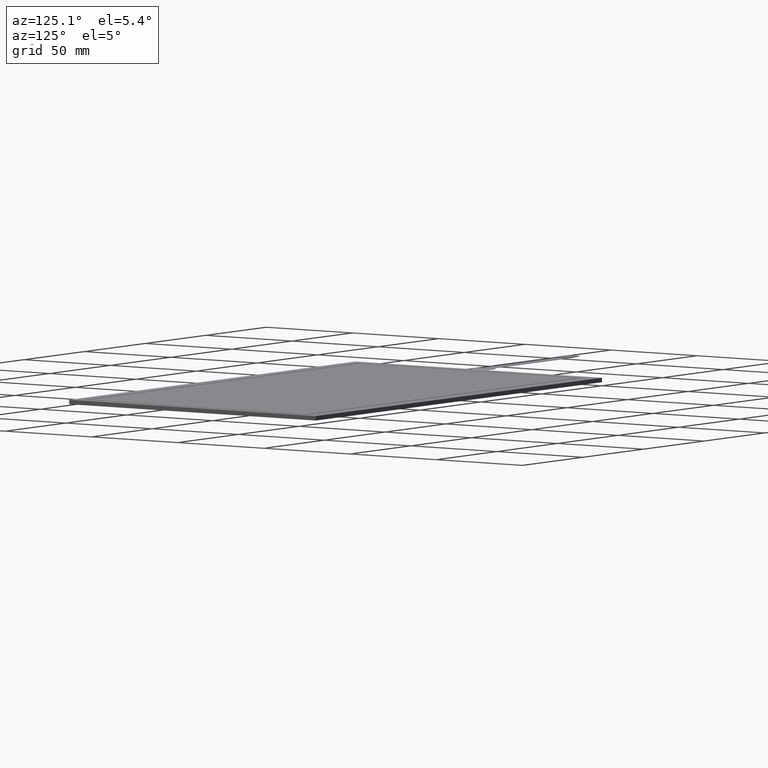
[diagram: clean part render]
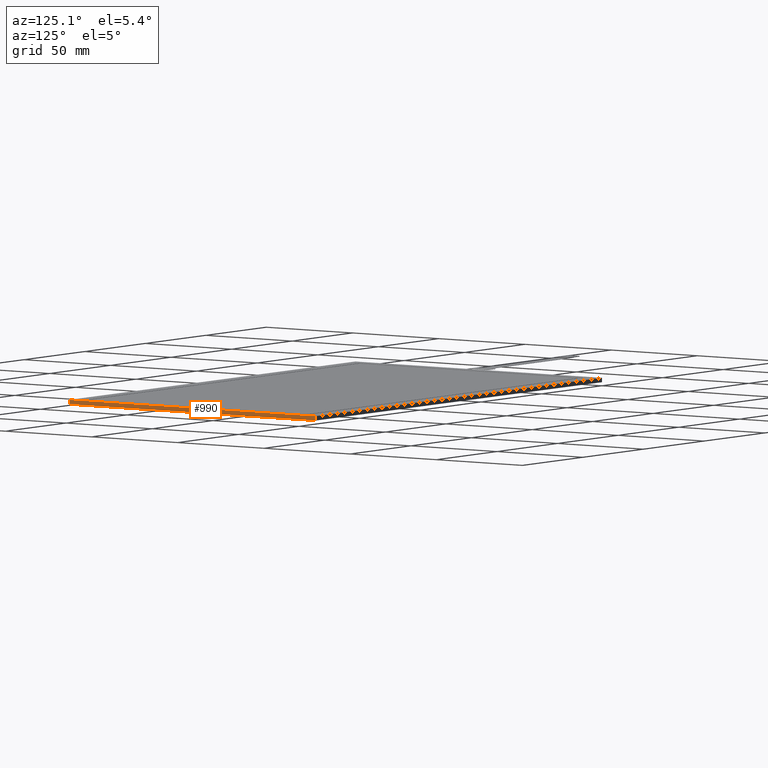
[diagram: same view with one face highlighted and labeled with its STEP entity id]
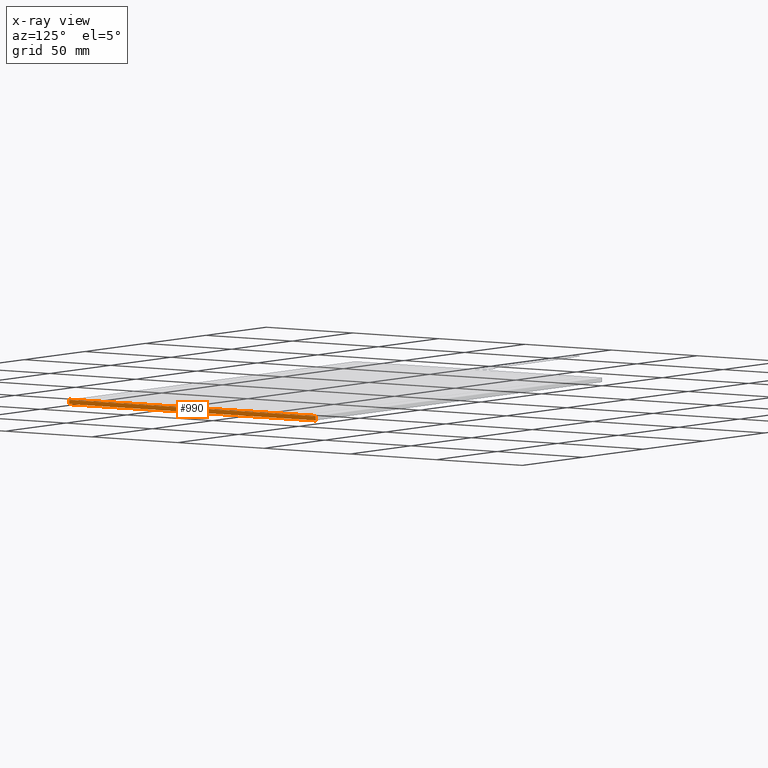
[diagram: x-ray of the same camera — body ghosted, the highlighted face saturated]
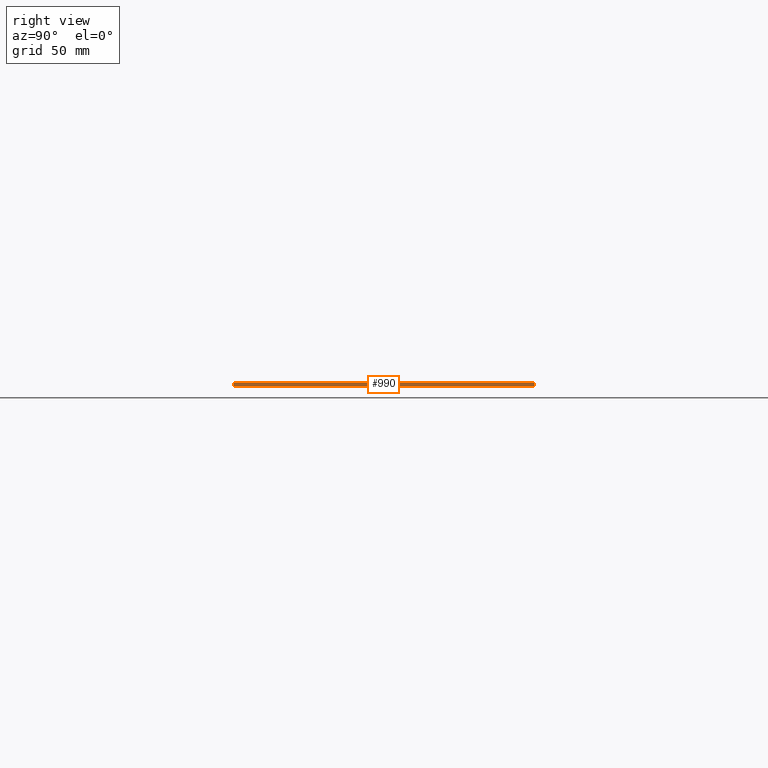
[diagram: same view with one face highlighted and labeled with its STEP entity id]
A machine part, auxiliary view. The second image highlights one B-rep face of the part: STEP entity #990.
The next image is the same camera in x-ray: the body ghosted, the highlighted face saturated — about 0% of this face is hidden behind the body in this view.
A second angle (right view) of the same face is appended — the face is thin or edge-on in the first view.
In plain terms, the highlighted planar face has unit normal (1, 0, 0).
Its self-contained STEP definition (entity closure, byte-faithful):
#80=FACE_OUTER_BOUND('',#134,.T.);
#134=EDGE_LOOP('',(#712,#713,#714,#715));
#201=LINE('',#1432,#327);
#206=LINE('',#1442,#332);
#207=LINE('',#1445,#333);
#208=LINE('',#1446,#334);
#327=VECTOR('',#1167,10.);
#332=VECTOR('',#1176,10.);
#333=VECTOR('',#1179,10.);
#334=VECTOR('',#1180,10.);
#442=VERTEX_POINT('',#1425);
#445=VERTEX_POINT('',#1430);
#448=VERTEX_POINT('',#1440);
#449=VERTEX_POINT('',#1444);
#545=EDGE_CURVE('',#445,#442,#201,.T.);
#550=EDGE_CURVE('',#445,#448,#206,.T.);
#551=EDGE_CURVE('',#449,#448,#207,.T.);
#552=EDGE_CURVE('',#442,#449,#208,.T.);
#712=ORIENTED_EDGE('',*,*,#545,.F.);
#713=ORIENTED_EDGE('',*,*,#550,.T.);
#714=ORIENTED_EDGE('',*,*,#551,.F.);
#715=ORIENTED_EDGE('',*,*,#552,.F.);
#944=PLANE('',#1066);
#990=ADVANCED_FACE('',(#80),#944,.T.);
#1066=AXIS2_PLACEMENT_3D('',#1443,#1177,#1178);
#1167=DIRECTION('',(-1.24220758000018E-16,1.,0.));
#1176=DIRECTION('',(0.,0.,-1.));
#1177=DIRECTION('center_axis',(1.,1.24220758000018E-16,0.));
#1178=DIRECTION('ref_axis',(1.24220758000018E-16,-1.,0.));
#1179=DIRECTION('',(1.24220758000018E-16,-1.,0.));
#1180=DIRECTION('',(0.,0.,-1.));
#1425=CARTESIAN_POINT('',(116.71,71.5,0.));
#1430=CARTESIAN_POINT('',(116.71,-71.5,0.));
#1432=CARTESIAN_POINT('',(116.71,-71.5,0.));
#1440=CARTESIAN_POINT('',(116.71,-71.5,-2.1));
#1442=CARTESIAN_POINT('',(116.71,-71.5,0.));
#1443=CARTESIAN_POINT('Origin',(116.71,71.5,0.));
#1444=CARTESIAN_POINT('',(116.71,71.5,-2.1));
#1445=CARTESIAN_POINT('',(116.71,-71.5,-2.1));
#1446=CARTESIAN_POINT('',(116.71,71.5,0.));